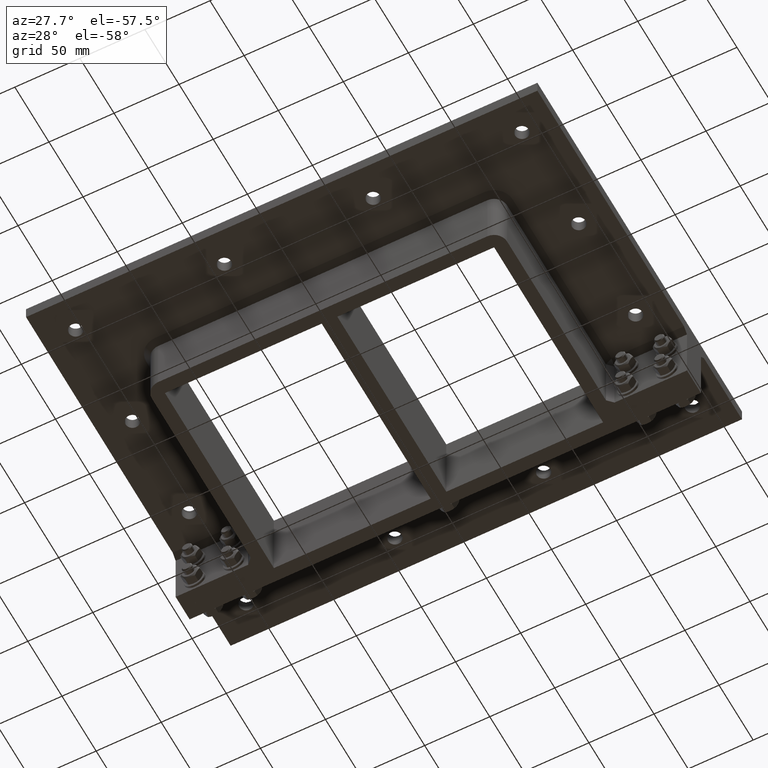
[diagram: clean part render]
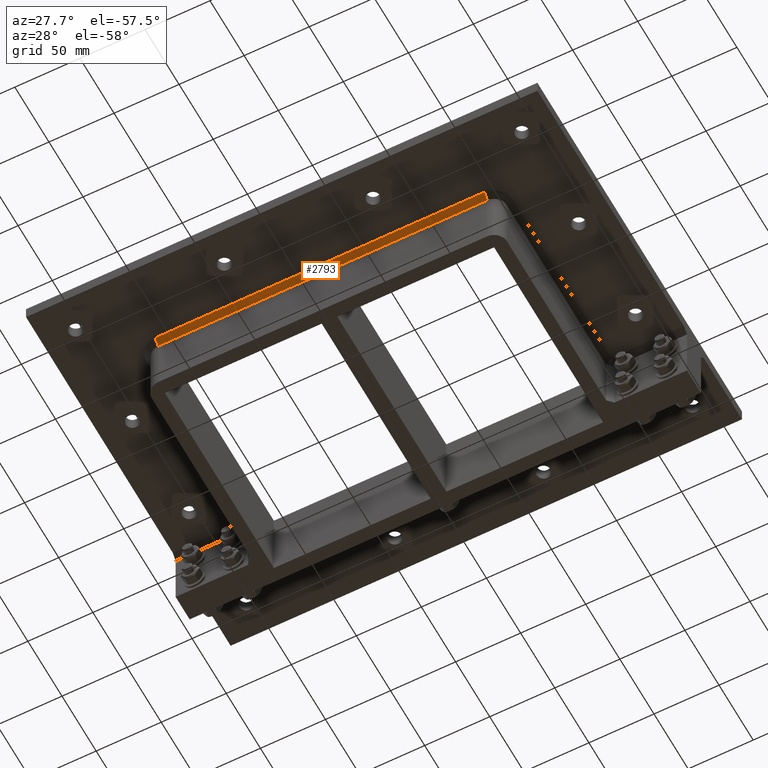
[diagram: same view with one face highlighted and labeled with its STEP entity id]
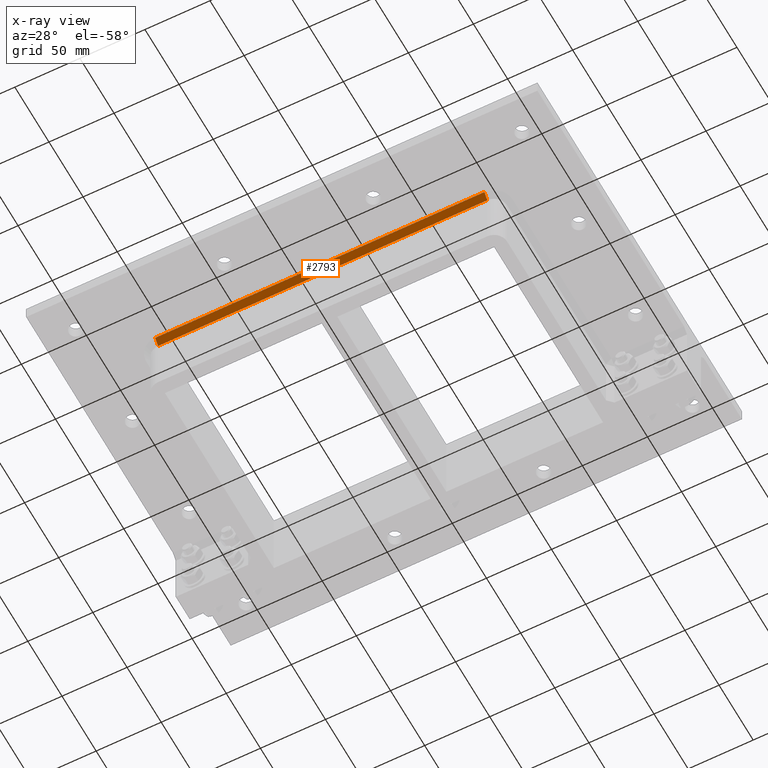
[diagram: x-ray of the same camera — body ghosted, the highlighted face saturated]
A machine part, auxiliary view. The second image highlights one B-rep face of the part: STEP entity #2793.
The next image is the same camera in x-ray: the body ghosted, the highlighted face saturated — about 0% of this face is hidden behind the body in this view.
In plain terms, the highlighted planar face has unit normal (0, -0.7071, -0.7071).
Its self-contained STEP definition (entity closure, byte-faithful):
#464=FACE_OUTER_BOUND('',#623,.T.);
#623=EDGE_LOOP('',(#1959,#1960,#1961,#1962));
#881=LINE('',#4366,#1102);
#882=LINE('',#4372,#1103);
#883=LINE('',#4373,#1104);
#884=LINE('',#4374,#1105);
#1102=VECTOR('',#3507,10.);
#1103=VECTOR('',#3514,10.);
#1104=VECTOR('',#3515,10.);
#1105=VECTOR('',#3516,10.);
#1320=VERTEX_POINT('',#4364);
#1321=VERTEX_POINT('',#4365);
#1322=VERTEX_POINT('',#4370);
#1323=VERTEX_POINT('',#4371);
#1570=EDGE_CURVE('',#1320,#1321,#881,.T.);
#1573=EDGE_CURVE('',#1322,#1323,#882,.T.);
#1574=EDGE_CURVE('',#1323,#1321,#883,.T.);
#1575=EDGE_CURVE('',#1320,#1322,#884,.T.);
#1959=ORIENTED_EDGE('',*,*,#1573,.T.);
#1960=ORIENTED_EDGE('',*,*,#1574,.T.);
#1961=ORIENTED_EDGE('',*,*,#1570,.F.);
#1962=ORIENTED_EDGE('',*,*,#1575,.T.);
#2706=PLANE('',#3170);
#2793=ADVANCED_FACE('',(#464),#2706,.T.);
#3170=AXIS2_PLACEMENT_3D('',#4369,#3512,#3513);
#3507=DIRECTION('',(0.,0.707106781186547,-0.707106781186548));
#3512=DIRECTION('center_axis',(0.,-0.707106781186548,-0.707106781186547));
#3513=DIRECTION('ref_axis',(-1.,0.,0.));
#3514=DIRECTION('',(2.921102248714E-15,0.707106781186547,-0.707106781186548));
#3515=DIRECTION('',(1.,0.,0.));
#3516=DIRECTION('',(-1.,0.,0.));
#4364=CARTESIAN_POINT('',(126.5,-94.05,-10.));
#4365=CARTESIAN_POINT('',(126.5,-89.75,-14.3));
#4366=CARTESIAN_POINT('',(126.5,-94.05,-10.));
#4369=CARTESIAN_POINT('Origin',(63.25,-91.9,-12.15));
#4370=CARTESIAN_POINT('',(-126.5,-94.05,-10.));
#4371=CARTESIAN_POINT('',(-126.5,-89.75,-14.3));
#4372=CARTESIAN_POINT('',(-126.5,-94.05,-10.));
#4373=CARTESIAN_POINT('',(63.25,-89.75,-14.3));
#4374=CARTESIAN_POINT('',(63.25,-94.05,-10.));